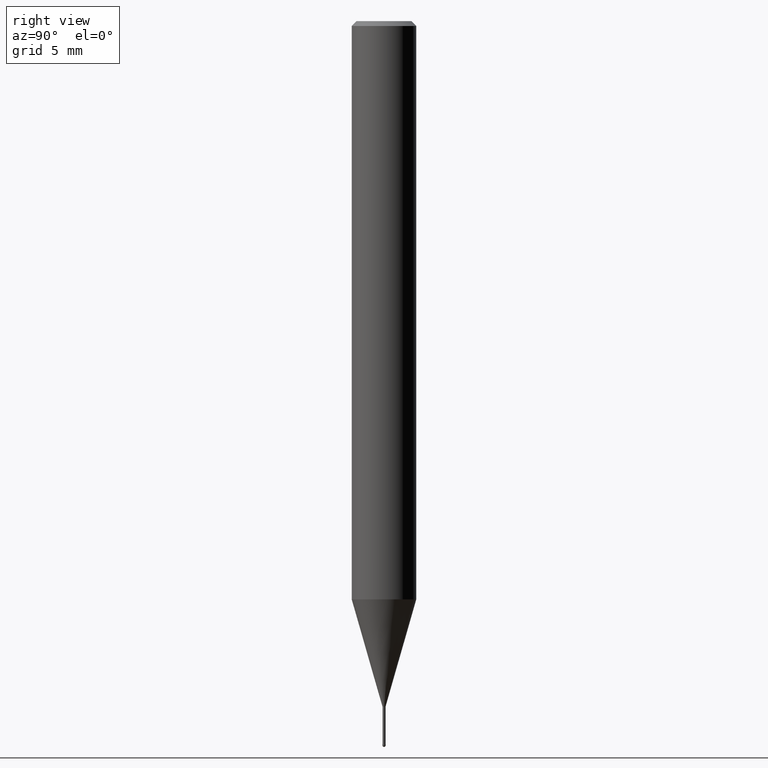
[diagram: clean part render]
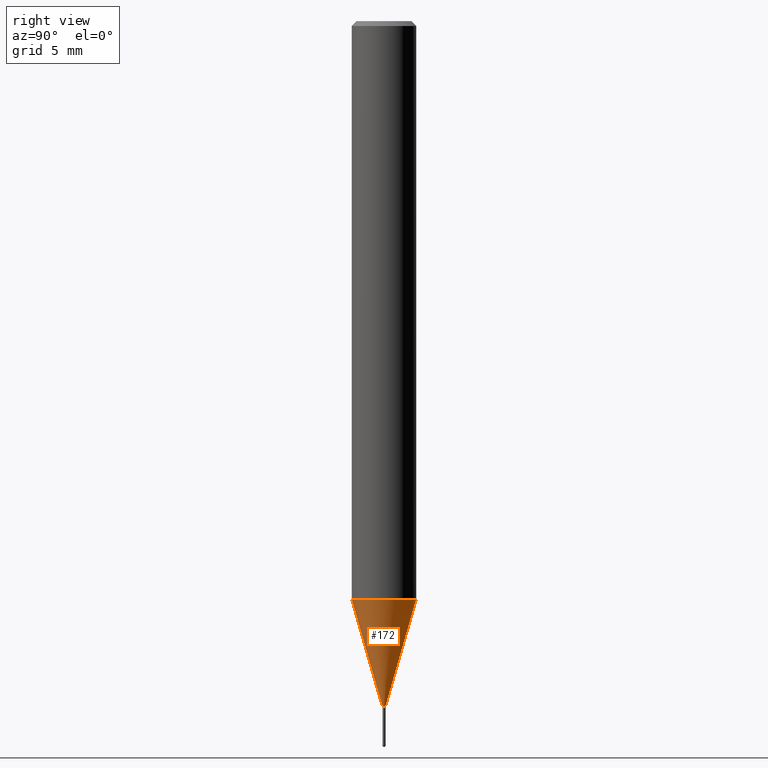
[diagram: same view with one face highlighted and labeled with its STEP entity id]
A machine part, right view. The second image highlights one B-rep face of the part: STEP entity #172.
In plain terms, the highlighted conical surface has half-angle 15.999 deg.
Its self-contained STEP definition (entity closure, byte-faithful):
#104=VERTEX_POINT('',#245);
#126=EDGE_CURVE('',#138,#180,#268,.T.);
#138=VERTEX_POINT('',#283);
#154=VERTEX_POINT('',#300);
#156=EDGE_CURVE('',#154,#104,#302,.T.);
#158=EDGE_CURVE('',#180,#154,#304,.T.);
#160=EDGE_CURVE('',#138,#104,#306,.T.);
#172=ADVANCED_FACE('',(#320),#321,.T.);
#180=VERTEX_POINT('',#331);
#245=CARTESIAN_POINT('',(2.44915147732706E-016,-1.99995,-35.856));
#268=LINE('',#428,#429);
#283=CARTESIAN_POINT('',(0.0,1.99995,-35.856));
#300=CARTESIAN_POINT('',(1.16276373295435E-017,-0.09495,-42.5));
#302=LINE('',#468,#469);
#304=CIRCLE('',#472,0.09495);
#306=CIRCLE('',#475,1.99995);
#320=FACE_OUTER_BOUND('',#493,.T.);
#321=CONICAL_SURFACE('',#494,1.04745,0.279233718115795);
#331=CARTESIAN_POINT('',(0.0,0.09495,-42.5));
#428=CARTESIAN_POINT('',(-1.28271392531125E-016,1.04745,-39.178));
#429=VECTOR('',#588,1.0);
#468=CARTESIAN_POINT('',(1.28271392531125E-016,-1.04745,-39.178));
#469=VECTOR('',#625,1.0);
#472=AXIS2_PLACEMENT_3D('',#626,#627,#628);
#475=AXIS2_PLACEMENT_3D('',#629,#630,#631);
#493=EDGE_LOOP('',(#656,#657,#658,#659));
#494=AXIS2_PLACEMENT_3D('',#660,#661,#662);
#588=DIRECTION('',(3.37524935540219E-017,-0.275619128127744,-0.961266922457078));
#625=DIRECTION('',(3.37524935540219E-017,-0.275619128127744,0.961266922457078));
#626=CARTESIAN_POINT('',(0.0,0.0,-42.5));
#627=DIRECTION('',(0.0,0.0,-1.0));
#628=DIRECTION('',(0.0,1.0,0.0));
#629=CARTESIAN_POINT('',(0.0,0.0,-35.856));
#630=DIRECTION('',(0.0,0.0,-1.0));
#631=DIRECTION('',(0.0,1.0,0.0));
#656=ORIENTED_EDGE('',*,*,#126,.F.);
#657=ORIENTED_EDGE('',*,*,#160,.T.);
#658=ORIENTED_EDGE('',*,*,#156,.F.);
#659=ORIENTED_EDGE('',*,*,#158,.F.);
#660=CARTESIAN_POINT('',(0.0,0.0,-39.178));
#661=DIRECTION('',(-0.0,-0.0,1.0));
#662=DIRECTION('',(0.0,1.0,0.0));